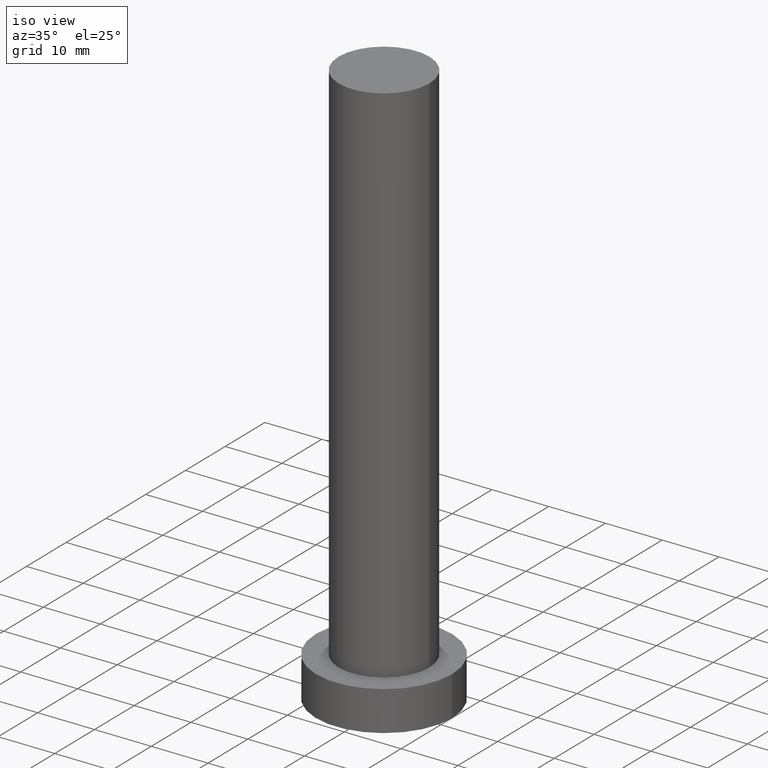
[diagram: clean part render]
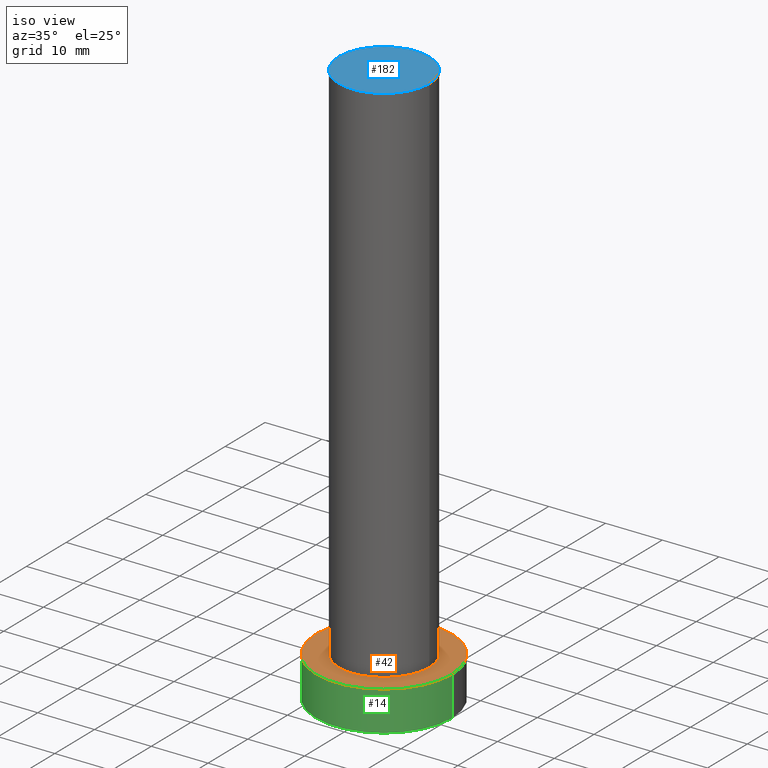
[diagram: same view with three faces highlighted in distinct colors, each labeled with its STEP entity id]
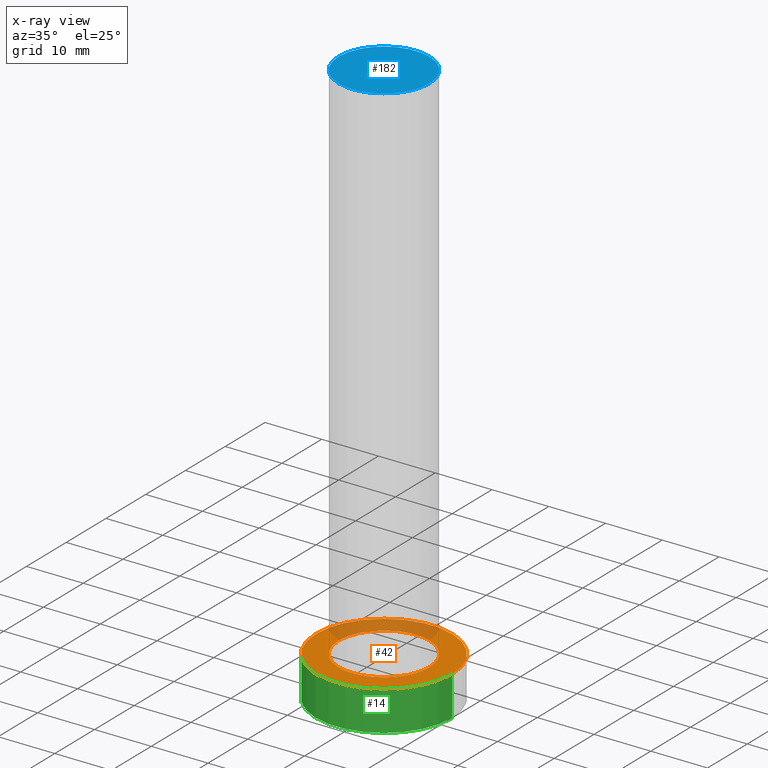
[diagram: x-ray of the same camera — body ghosted, the three highlighted faces saturated]
A machine part, iso view with three faces highlighted in distinct colors.
The next image is the same camera in x-ray (body ghosted, the three faces saturated) — at least one of them is partly hidden behind the body in this view.
Their STEP definitions:

[orange] entity #42 — the highlighted planar face has unit normal (0, 0, 1).
#2 = CARTESIAN_POINT ( 'NONE',  ( 12.00000000000000178, 1.469576158976824144E-15, 7.000000000000000000 ) ) ;
#5 = CARTESIAN_POINT ( 'NONE',  ( 0.000000000000000000, 0.000000000000000000, 7.000000000000000000 ) ) ;
#7 = ORIENTED_EDGE ( 'NONE', *, *, #81, .F. ) ;
#13 = DIRECTION ( 'NONE',  ( 1.000000000000000000, 0.000000000000000000, 0.000000000000000000 ) ) ;
#20 = DIRECTION ( 'NONE',  ( 1.000000000000000000, 0.000000000000000000, 0.000000000000000000 ) ) ;
#23 = EDGE_CURVE ( 'NONE', #152, #207, #199, .T. ) ;
#32 = DIRECTION ( 'NONE',  ( 0.000000000000000000, 0.000000000000000000, 1.000000000000000000 ) ) ;
#42 = ADVANCED_FACE ( 'NONE', ( #176, #169 ), #192, .T. ) ;
#45 = DIRECTION ( 'NONE',  ( 1.000000000000000000, 0.000000000000000000, 0.000000000000000000 ) ) ;
#47 = DIRECTION ( 'NONE',  ( 0.000000000000000000, 0.000000000000000000, 1.000000000000000000 ) ) ;
#51 = VERTEX_POINT ( 'NONE', #238 ) ;
#53 = EDGE_LOOP ( 'NONE', ( #84, #166 ) ) ;
#56 = AXIS2_PLACEMENT_3D ( 'NONE', #217, #138, #219 ) ;
#58 = CARTESIAN_POINT ( 'NONE',  ( 0.000000000000000000, 0.000000000000000000, 7.000000000000000000 ) ) ;
#59 = EDGE_CURVE ( 'NONE', #207, #152, #203, .T. ) ;
#61 = DIRECTION ( 'NONE',  ( 1.000000000000000000, 0.000000000000000000, 0.000000000000000000 ) ) ;
#62 = AXIS2_PLACEMENT_3D ( 'NONE', #58, #235, #13 ) ;
#81 = EDGE_CURVE ( 'NONE', #51, #244, #153, .T. ) ;
#83 = CARTESIAN_POINT ( 'NONE',  ( -8.000000000000000000, 0.000000000000000000, 7.000000000000000000 ) ) ;
#84 = ORIENTED_EDGE ( 'NONE', *, *, #59, .T. ) ;
#85 = EDGE_CURVE ( 'NONE', #244, #51, #208, .T. ) ;
#95 = AXIS2_PLACEMENT_3D ( 'NONE', #5, #47, #45 ) ;
#98 = AXIS2_PLACEMENT_3D ( 'NONE', #119, #156, #61 ) ;
#119 = CARTESIAN_POINT ( 'NONE',  ( 0.000000000000000000, 0.000000000000000000, 7.000000000000000000 ) ) ;
#138 = DIRECTION ( 'NONE',  ( 0.000000000000000000, 0.000000000000000000, 1.000000000000000000 ) ) ;
#142 = ORIENTED_EDGE ( 'NONE', *, *, #85, .F. ) ;
#152 = VERTEX_POINT ( 'NONE', #2 ) ;
#153 = CIRCLE ( 'NONE', #98, 8.000000000000000000 ) ;
#156 = DIRECTION ( 'NONE',  ( 0.000000000000000000, 0.000000000000000000, 1.000000000000000000 ) ) ;
#166 = ORIENTED_EDGE ( 'NONE', *, *, #23, .T. ) ;
#169 = FACE_OUTER_BOUND ( 'NONE', #53, .T. ) ;
#176 = FACE_BOUND ( 'NONE', #190, .T. ) ;
#184 = CARTESIAN_POINT ( 'NONE',  ( -12.00000000000000178, 0.000000000000000000, 7.000000000000000000 ) ) ;
#190 = EDGE_LOOP ( 'NONE', ( #142, #7 ) ) ;
#192 = PLANE ( 'NONE',  #56 ) ;
#199 = CIRCLE ( 'NONE', #242, 12.00000000000000178 ) ;
#203 = CIRCLE ( 'NONE', #62, 12.00000000000000178 ) ;
#207 = VERTEX_POINT ( 'NONE', #184 ) ;
#208 = CIRCLE ( 'NONE', #95, 8.000000000000000000 ) ;
#213 = CARTESIAN_POINT ( 'NONE',  ( 0.000000000000000000, 0.000000000000000000, 7.000000000000000000 ) ) ;
#217 = CARTESIAN_POINT ( 'NONE',  ( 0.000000000000000000, 0.000000000000000000, 7.000000000000000000 ) ) ;
#219 = DIRECTION ( 'NONE',  ( 1.000000000000000000, 0.000000000000000000, -0.000000000000000000 ) ) ;
#235 = DIRECTION ( 'NONE',  ( 0.000000000000000000, 0.000000000000000000, 1.000000000000000000 ) ) ;
#238 = CARTESIAN_POINT ( 'NONE',  ( 8.000000000000000000, 9.797174393178823685E-16, 7.000000000000000000 ) ) ;
#242 = AXIS2_PLACEMENT_3D ( 'NONE', #213, #32, #20 ) ;
#244 = VERTEX_POINT ( 'NONE', #83 ) ;

[blue] entity #182 — the highlighted planar face has unit normal (0, 0, 1).
#19 = AXIS2_PLACEMENT_3D ( 'NONE', #122, #160, #139 ) ;
#41 = DIRECTION ( 'NONE',  ( 1.000000000000000000, 0.000000000000000000, 0.000000000000000000 ) ) ;
#43 = DIRECTION ( 'NONE',  ( 1.000000000000000000, 0.000000000000000000, -0.000000000000000000 ) ) ;
#44 = FACE_OUTER_BOUND ( 'NONE', #88, .T. ) ;
#49 = VERTEX_POINT ( 'NONE', #150 ) ;
#67 = ORIENTED_EDGE ( 'NONE', *, *, #180, .T. ) ;
#87 = AXIS2_PLACEMENT_3D ( 'NONE', #239, #102, #41 ) ;
#88 = EDGE_LOOP ( 'NONE', ( #67, #146 ) ) ;
#102 = DIRECTION ( 'NONE',  ( 0.000000000000000000, 0.000000000000000000, 1.000000000000000000 ) ) ;
#121 = CIRCLE ( 'NONE', #19, 8.000000000000000000 ) ;
#122 = CARTESIAN_POINT ( 'NONE',  ( 0.000000000000000000, 0.000000000000000000, 100.0000000000000000 ) ) ;
#123 = CARTESIAN_POINT ( 'NONE',  ( 0.000000000000000000, 0.000000000000000000, 100.0000000000000000 ) ) ;
#131 = AXIS2_PLACEMENT_3D ( 'NONE', #123, #143, #43 ) ;
#139 = DIRECTION ( 'NONE',  ( 1.000000000000000000, 0.000000000000000000, 0.000000000000000000 ) ) ;
#143 = DIRECTION ( 'NONE',  ( 0.000000000000000000, 0.000000000000000000, 1.000000000000000000 ) ) ;
#146 = ORIENTED_EDGE ( 'NONE', *, *, #194, .T. ) ;
#150 = CARTESIAN_POINT ( 'NONE',  ( 8.000000000000000000, 9.797174393178823685E-16, 100.0000000000000000 ) ) ;
#160 = DIRECTION ( 'NONE',  ( 0.000000000000000000, 0.000000000000000000, 1.000000000000000000 ) ) ;
#164 = CIRCLE ( 'NONE', #87, 8.000000000000000000 ) ;
#180 = EDGE_CURVE ( 'NONE', #225, #49, #164, .T. ) ;
#182 = ADVANCED_FACE ( 'NONE', ( #44 ), #222, .T. ) ;
#194 = EDGE_CURVE ( 'NONE', #49, #225, #121, .T. ) ;
#201 = CARTESIAN_POINT ( 'NONE',  ( -8.000000000000000000, 0.000000000000000000, 100.0000000000000000 ) ) ;
#222 = PLANE ( 'NONE',  #131 ) ;
#225 = VERTEX_POINT ( 'NONE', #201 ) ;
#239 = CARTESIAN_POINT ( 'NONE',  ( 0.000000000000000000, 0.000000000000000000, 100.0000000000000000 ) ) ;

[green] entity #14 — the highlighted cylindrical surface (partial cylindrical patch) has radius 12 mm, axis along (-0, -0, -1).
#2 = CARTESIAN_POINT ( 'NONE',  ( 12.00000000000000178, 1.469576158976824144E-15, 7.000000000000000000 ) ) ;
#8 = CARTESIAN_POINT ( 'NONE',  ( 0.000000000000000000, 0.000000000000000000, 0.000000000000000000 ) ) ;
#12 = DIRECTION ( 'NONE',  ( -0.000000000000000000, -0.000000000000000000, -1.000000000000000000 ) ) ;
#13 = DIRECTION ( 'NONE',  ( 1.000000000000000000, 0.000000000000000000, 0.000000000000000000 ) ) ;
#14 = ADVANCED_FACE ( 'NONE', ( #197 ), #39, .T. ) ;
#27 = ORIENTED_EDGE ( 'NONE', *, *, #59, .F. ) ;
#29 = EDGE_LOOP ( 'NONE', ( #230, #27, #189, #206 ) ) ;
#31 = EDGE_CURVE ( 'NONE', #152, #155, #96, .T. ) ;
#39 = CYLINDRICAL_SURFACE ( 'NONE', #115, 12.00000000000000178 ) ;
#48 = VECTOR ( 'NONE', #60, 1000.000000000000000 ) ;
#58 = CARTESIAN_POINT ( 'NONE',  ( 0.000000000000000000, 0.000000000000000000, 7.000000000000000000 ) ) ;
#59 = EDGE_CURVE ( 'NONE', #207, #152, #203, .T. ) ;
#60 = DIRECTION ( 'NONE',  ( -0.000000000000000000, -0.000000000000000000, -1.000000000000000000 ) ) ;
#62 = AXIS2_PLACEMENT_3D ( 'NONE', #58, #235, #13 ) ;
#65 = CARTESIAN_POINT ( 'NONE',  ( 12.00000000000000178, 1.469576158976824144E-15, 0.000000000000000000 ) ) ;
#80 = CARTESIAN_POINT ( 'NONE',  ( -12.00000000000000178, 0.000000000000000000, 7.000000000000000000 ) ) ;
#96 = LINE ( 'NONE', #179, #110 ) ;
#99 = EDGE_CURVE ( 'NONE', #207, #144, #243, .T. ) ;
#110 = VECTOR ( 'NONE', #12, 1000.000000000000000 ) ;
#115 = AXIS2_PLACEMENT_3D ( 'NONE', #117, #209, #237 ) ;
#117 = CARTESIAN_POINT ( 'NONE',  ( 0.000000000000000000, 0.000000000000000000, 7.000000000000000000 ) ) ;
#136 = CIRCLE ( 'NONE', #173, 12.00000000000000178 ) ;
#140 = CARTESIAN_POINT ( 'NONE',  ( -12.00000000000000178, 0.000000000000000000, 0.000000000000000000 ) ) ;
#144 = VERTEX_POINT ( 'NONE', #140 ) ;
#149 = DIRECTION ( 'NONE',  ( 0.000000000000000000, 0.000000000000000000, 1.000000000000000000 ) ) ;
#152 = VERTEX_POINT ( 'NONE', #2 ) ;
#155 = VERTEX_POINT ( 'NONE', #65 ) ;
#173 = AXIS2_PLACEMENT_3D ( 'NONE', #8, #149, #234 ) ;
#179 = CARTESIAN_POINT ( 'NONE',  ( 12.00000000000000178, 1.469576158976824144E-15, 7.000000000000000000 ) ) ;
#184 = CARTESIAN_POINT ( 'NONE',  ( -12.00000000000000178, 0.000000000000000000, 7.000000000000000000 ) ) ;
#189 = ORIENTED_EDGE ( 'NONE', *, *, #99, .T. ) ;
#197 = FACE_OUTER_BOUND ( 'NONE', #29, .T. ) ;
#203 = CIRCLE ( 'NONE', #62, 12.00000000000000178 ) ;
#206 = ORIENTED_EDGE ( 'NONE', *, *, #255, .T. ) ;
#207 = VERTEX_POINT ( 'NONE', #184 ) ;
#209 = DIRECTION ( 'NONE',  ( -0.000000000000000000, -0.000000000000000000, -1.000000000000000000 ) ) ;
#230 = ORIENTED_EDGE ( 'NONE', *, *, #31, .F. ) ;
#234 = DIRECTION ( 'NONE',  ( 1.000000000000000000, 0.000000000000000000, 0.000000000000000000 ) ) ;
#235 = DIRECTION ( 'NONE',  ( 0.000000000000000000, 0.000000000000000000, 1.000000000000000000 ) ) ;
#237 = DIRECTION ( 'NONE',  ( -1.000000000000000000, 0.000000000000000000, 0.000000000000000000 ) ) ;
#243 = LINE ( 'NONE', #80, #48 ) ;
#255 = EDGE_CURVE ( 'NONE', #144, #155, #136, .T. ) ;